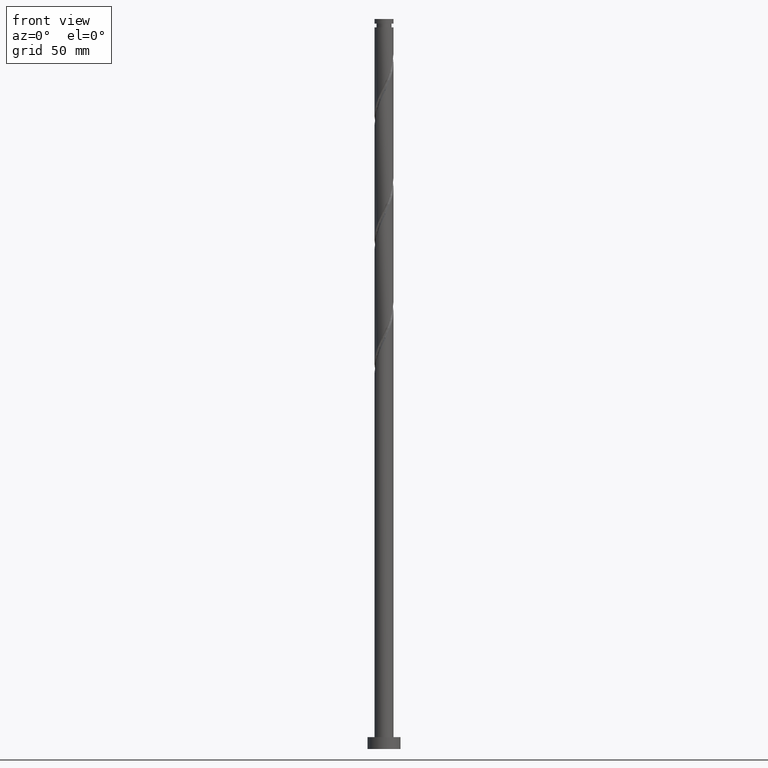
[diagram: clean part render]
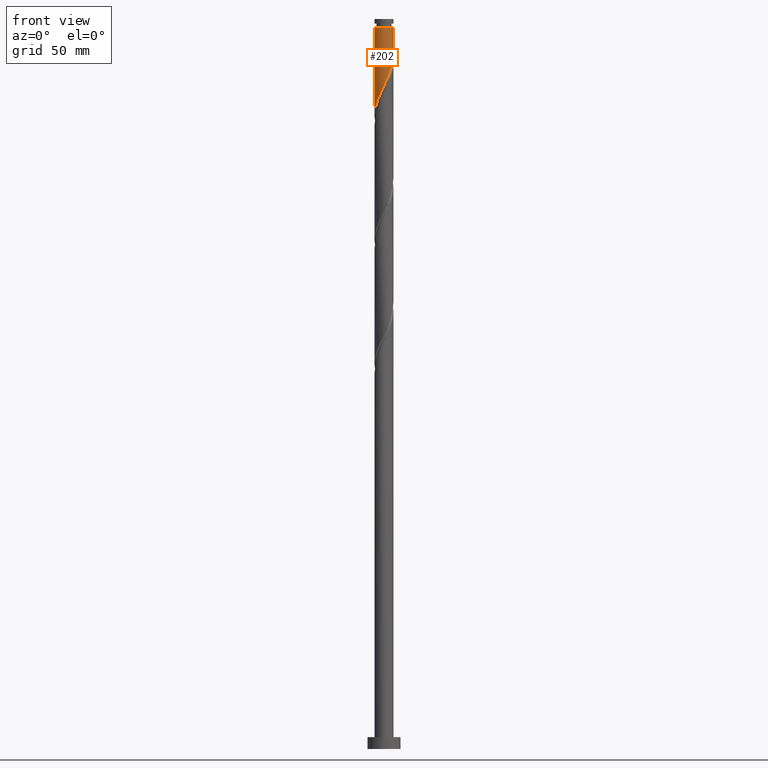
[diagram: same view with one face highlighted and labeled with its STEP entity id]
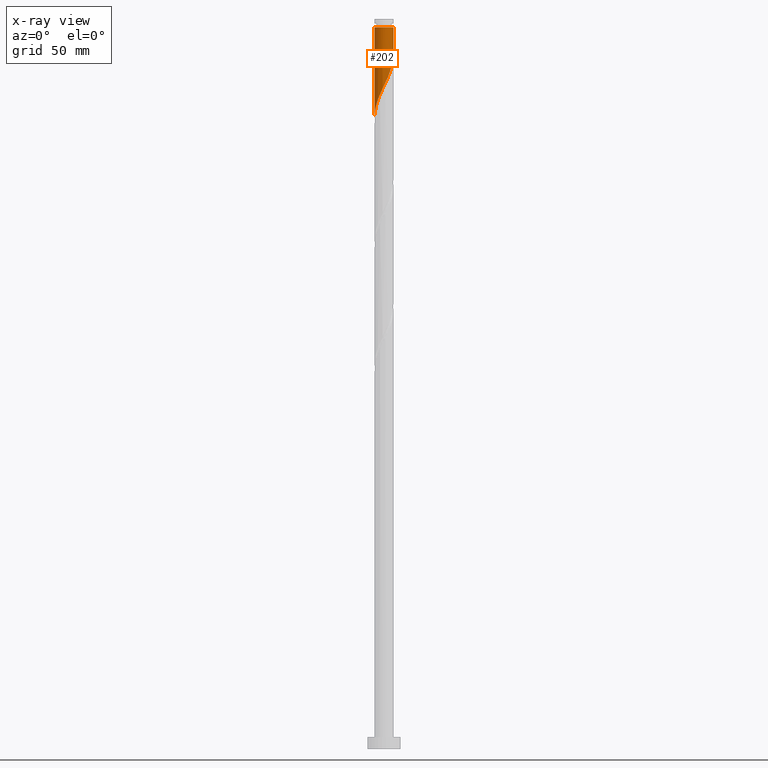
[diagram: x-ray of the same camera — body ghosted, the highlighted face saturated]
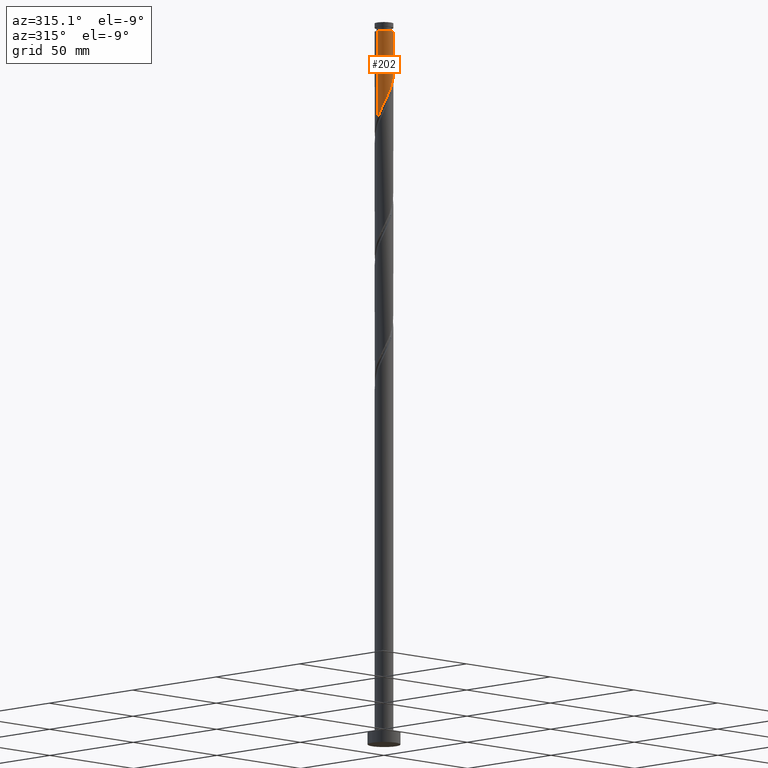
[diagram: same view with one face highlighted and labeled with its STEP entity id]
A machine part, front view. The second image highlights one B-rep face of the part: STEP entity #202.
The next image is the same camera in x-ray: the body ghosted, the highlighted face saturated — about 0% of this face is hidden behind the body in this view.
A second angle (auxiliary view) of the same face is appended — the face is thin or edge-on in the first view.
In plain terms, the highlighted cylindrical surface (edge-blend (fillet) strip) has radius 4 mm, axis along (-0, -0, -1).
Its self-contained STEP definition (entity closure, byte-faithful):
#69 = VECTOR ( 'NONE', #1259, 1000.000000000000000 ) ;
#94 = CARTESIAN_POINT ( 'NONE',  ( -0.7959899496852989031, -3.919999999999999485, 279.1984676459098296 ) ) ;
#126 = CARTESIAN_POINT ( 'NONE',  ( 3.919999999999999485, -0.7959899496852991252, 292.3234676459100001 ) ) ;
#202 = ADVANCED_FACE ( 'NONE', ( #1307 ), #1769, .T. ) ;
#232 = CARTESIAN_POINT ( 'NONE',  ( 0.9836620935111599628, -3.877165057846936325, 282.9484676459098864 ) ) ;
#243 = CARTESIAN_POINT ( 'NONE',  ( -0.3543120252768637291, -4.009686527761982866, 280.1359676459100001 ) ) ;
#287 = CARTESIAN_POINT ( 'NONE',  ( -2.777010954688413413, -2.913989227796198733, 274.5109676459098864 ) ) ;
#297 = CARTESIAN_POINT ( 'NONE',  ( -4.000000000000000000, 0.000000000000000000, 309.0000000000000000 ) ) ;
#307 = CARTESIAN_POINT ( 'NONE',  ( -3.355809096668276759, -2.222986362731491639, 272.6359676459099433 ) ) ;
#398 = CARTESIAN_POINT ( 'NONE',  ( -1.237667874093734355, -3.830313472238015660, 278.2609676459098864 ) ) ;
#407 =( BOUNDED_CURVE ( )  B_SPLINE_CURVE ( 2, ( #967, #1298, #126, #1733, #1455, #1014, #712, #1566, #422, #1612, #866, #690, #232, #537, #1132, #243, #94, #398, #992, #1655, #756, #287, #1646, #307, #889, #898, #1332, #1362, #1925, #880, #1500 ),
 .UNSPECIFIED., .F., .T. ) 
 B_SPLINE_CURVE_WITH_KNOTS ( ( 3, 2, 2, 2, 2, 2, 2, 2, 2, 2, 2, 2, 2, 2, 2, 3 ),
 ( 0.3045303401299220836, 0.3125000000000000000, 0.3214285714285714524, 0.3303571428571428492, 0.3392857142857143016, 0.3482142857142856984, 0.3571428571428571508, 0.3660714285714285476, 0.3750000000000000000, 0.3839285714285714524, 0.3928571428571428492, 0.4017857142857143016, 0.4107142857142856984, 0.4196428571428571508, 0.4285714285714285476, 0.4295303401299219725 ),
 .UNSPECIFIED. ) 
 CURVE ( )  GEOMETRIC_REPRESENTATION_ITEM ( )  RATIONAL_B_SPLINE_CURVE ( ( 0.9079949616362045228, 0.9039886423360677936, 0.9090909090909344847, 0.9033747362666094682, 0.9090909090909344847, 0.9033747362666094682, 0.9090909090909344847, 0.9033747362666094682, 0.9090909090909344847, 0.9033747362666094682, 0.9090909090909344847, 0.9033747362666094682, 0.9090909090909344847, 0.9033747362666094682, 0.9090909090909344847, 0.9033747362666094682, 0.9090909090909344847, 0.9033747362666094682, 0.9090909090909344847, 0.9033747362666094682, 0.9090909090909344847, 0.9033747362666094682, 0.9090909090909344847, 0.9033747362666094682, 0.9090909090909344847, 0.9033747362666094682, 0.9090909090909344847, 0.9033747362666094682, 0.9090909090909344847, 0.9084770030214762704, 0.9079949616362046338 ) ) 
 REPRESENTATION_ITEM ( '' )  );
#422 = CARTESIAN_POINT ( 'NONE',  ( 2.568487795263845186, -3.066410025678344198, 286.6984676459098864 ) ) ;
#441 = VERTEX_POINT ( 'NONE', #677 ) ;
#448 = LINE ( 'NONE', #297, #69 ) ;
#525 = VERTEX_POINT ( 'NONE', #1306 ) ;
#537 = CARTESIAN_POINT ( 'NONE',  ( 0.5468105079655614098, -3.987997157791136171, 282.0109676459099433 ) ) ;
#553 = CARTESIAN_POINT ( 'NONE',  ( 3.999999999999974243, 4.898587196589397051E-16, 305.4484676459098864 ) ) ;
#581 = DIRECTION ( 'NONE',  ( -0.000000000000000000, -0.000000000000000000, -1.000000000000000000 ) ) ;
#648 = AXIS2_PLACEMENT_3D ( 'NONE', #872, #1450, #1181 ) ;
#677 = CARTESIAN_POINT ( 'NONE',  ( -4.000000000000000000, 7.358406346112387217E-15, 267.7479847238159323 ) ) ;
#690 = CARTESIAN_POINT ( 'NONE',  ( 1.420513679056758294, -3.766332957902735146, 283.8859676459098864 ) ) ;
#712 = CARTESIAN_POINT ( 'NONE',  ( 3.186430866508027204, -2.417986421170494893, 288.5734676459098864 ) ) ;
#756 = CARTESIAN_POINT ( 'NONE',  ( -2.417986421170494449, -3.186430866508027204, 275.4484676459098864 ) ) ;
#780 = AXIS2_PLACEMENT_3D ( 'NONE', #864, #581, #888 ) ;
#864 = CARTESIAN_POINT ( 'NONE',  ( 0.000000000000000000, 0.000000000000000000, 309.0000000000000000 ) ) ;
#866 = CARTESIAN_POINT ( 'NONE',  ( 1.821750020894124855, -3.561071027285505952, 284.8234676459099433 ) ) ;
#872 = CARTESIAN_POINT ( 'NONE',  ( 0.000000000000000000, 0.000000000000000000, 305.4484676459098864 ) ) ;
#880 = CARTESIAN_POINT ( 'NONE',  ( -3.999999999999999112, -0.04813158866556253856, 267.8483474120410506 ) ) ;
#888 = DIRECTION ( 'NONE',  ( -1.000000000000000000, 0.000000000000000000, 0.000000000000000000 ) ) ;
#889 = CARTESIAN_POINT ( 'NONE',  ( -3.561071027285505952, -1.821750020894125299, 271.6984676459098296 ) ) ;
#898 = CARTESIAN_POINT ( 'NONE',  ( -3.766332957902735146, -1.420513679056758294, 270.7609676459098864 ) ) ;
#899 = CIRCLE ( 'NONE', #648, 3.999999999999974243 ) ;
#915 = EDGE_CURVE ( 'NONE', #971, #441, #407, .T. ) ;
#967 = CARTESIAN_POINT ( 'NONE',  ( 4.000000000000000888, -2.231403141468158652E-15, 293.9979847238159323 ) ) ;
#971 = VERTEX_POINT ( 'NONE', #1491 ) ;
#987 = LINE ( 'NONE', #1249, #1523 ) ;
#992 = CARTESIAN_POINT ( 'NONE',  ( -1.648314880873155364, -3.644592988728935001, 277.3234676459099433 ) ) ;
#1014 = CARTESIAN_POINT ( 'NONE',  ( 3.458872505219855231, -2.058961887652577261, 289.5109676459098864 ) ) ;
#1072 = EDGE_CURVE ( 'NONE', #525, #441, #448, .T. ) ;
#1125 = DIRECTION ( 'NONE',  ( -0.000000000000000000, -0.000000000000000000, -1.000000000000000000 ) ) ;
#1132 = CARTESIAN_POINT ( 'NONE',  ( 0.09624924134434893752, -3.998841842776559741, 281.0734676459098864 ) ) ;
#1181 = DIRECTION ( 'NONE',  ( -1.000000000000000000, 0.000000000000000000, 0.000000000000000000 ) ) ;
#1219 = EDGE_CURVE ( 'NONE', #1504, #971, #987, .T. ) ;
#1249 = CARTESIAN_POINT ( 'NONE',  ( 4.000000000000000000, 4.898587196589412829E-16, 309.0000000000000000 ) ) ;
#1259 = DIRECTION ( 'NONE',  ( -0.000000000000000000, -0.000000000000000000, -1.000000000000000000 ) ) ;
#1298 = CARTESIAN_POINT ( 'NONE',  ( 3.999999999999999112, -0.4020151261036903345, 293.1597136448523884 ) ) ;
#1306 = CARTESIAN_POINT ( 'NONE',  ( -3.999999999999974243, 0.000000000000000000, 305.4484676459098864 ) ) ;
#1307 = FACE_OUTER_BOUND ( 'NONE', #1881, .T. ) ;
#1314 = ORIENTED_EDGE ( 'NONE', *, *, #1476, .T. ) ;
#1332 = CARTESIAN_POINT ( 'NONE',  ( -3.877165057846936325, -0.9836620935111599628, 269.8234676459099433 ) ) ;
#1362 = CARTESIAN_POINT ( 'NONE',  ( -3.987997157791136171, -0.5468105079655616318, 268.8859676459098864 ) ) ;
#1450 = DIRECTION ( 'NONE',  ( -0.000000000000000000, -0.000000000000000000, -1.000000000000000000 ) ) ;
#1455 = CARTESIAN_POINT ( 'NONE',  ( 3.644592988728935001, -1.648314880873155808, 290.4484676459098864 ) ) ;
#1476 = EDGE_CURVE ( 'NONE', #1504, #525, #899, .T. ) ;
#1491 = CARTESIAN_POINT ( 'NONE',  ( 4.000000000000000888, -2.231403141468158258E-15, 293.9979847238159891 ) ) ;
#1500 = CARTESIAN_POINT ( 'NONE',  ( -4.000000000000000000, 7.358406346112387217E-15, 267.7479847238159323 ) ) ;
#1504 = VERTEX_POINT ( 'NONE', #553 ) ;
#1523 = VECTOR ( 'NONE', #1125, 1000.000000000000000 ) ;
#1556 = ORIENTED_EDGE ( 'NONE', *, *, #915, .F. ) ;
#1566 = CARTESIAN_POINT ( 'NONE',  ( 2.913989227796198733, -2.777010954688413413, 287.6359676459098864 ) ) ;
#1612 = CARTESIAN_POINT ( 'NONE',  ( 2.222986362731491639, -3.355809096668276759, 285.7609676459098864 ) ) ;
#1646 = CARTESIAN_POINT ( 'NONE',  ( -3.066410025678343754, -2.568487795263845186, 273.5734676459099433 ) ) ;
#1655 = CARTESIAN_POINT ( 'NONE',  ( -2.058961887652577261, -3.458872505219855675, 276.3859676459098864 ) ) ;
#1733 = CARTESIAN_POINT ( 'NONE',  ( 3.830313472238015660, -1.237667874093734355, 291.3859676459098296 ) ) ;
#1737 = ORIENTED_EDGE ( 'NONE', *, *, #1219, .F. ) ;
#1763 = ORIENTED_EDGE ( 'NONE', *, *, #1072, .T. ) ;
#1769 = CYLINDRICAL_SURFACE ( 'NONE', #780, 4.000000000000000000 ) ;
#1881 = EDGE_LOOP ( 'NONE', ( #1737, #1314, #1763, #1556 ) ) ;
#1925 = CARTESIAN_POINT ( 'NONE',  ( -3.998841842776559741, -0.09624924134434913181, 267.9484676459098864 ) ) ;